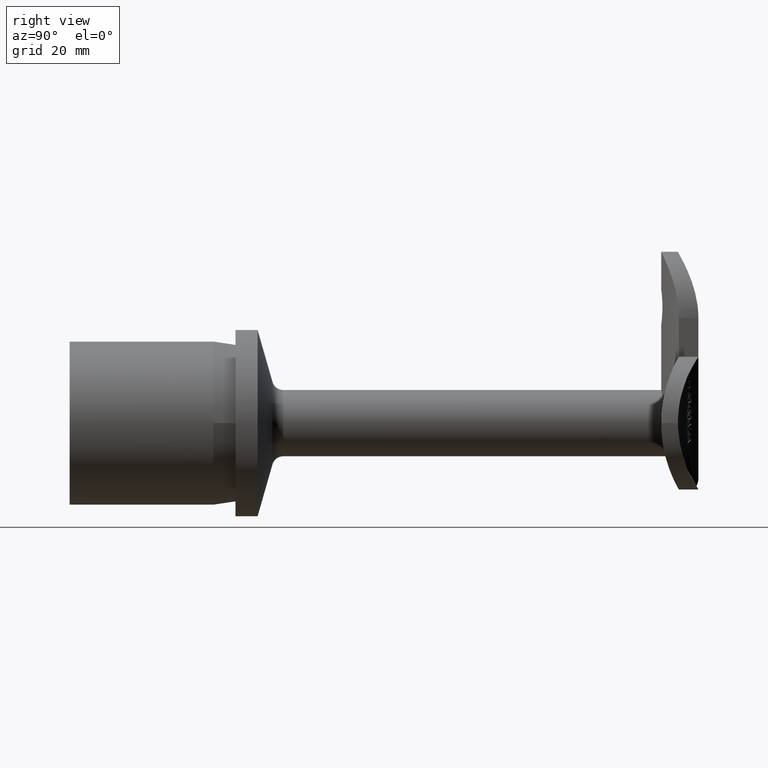
[diagram: clean part render]
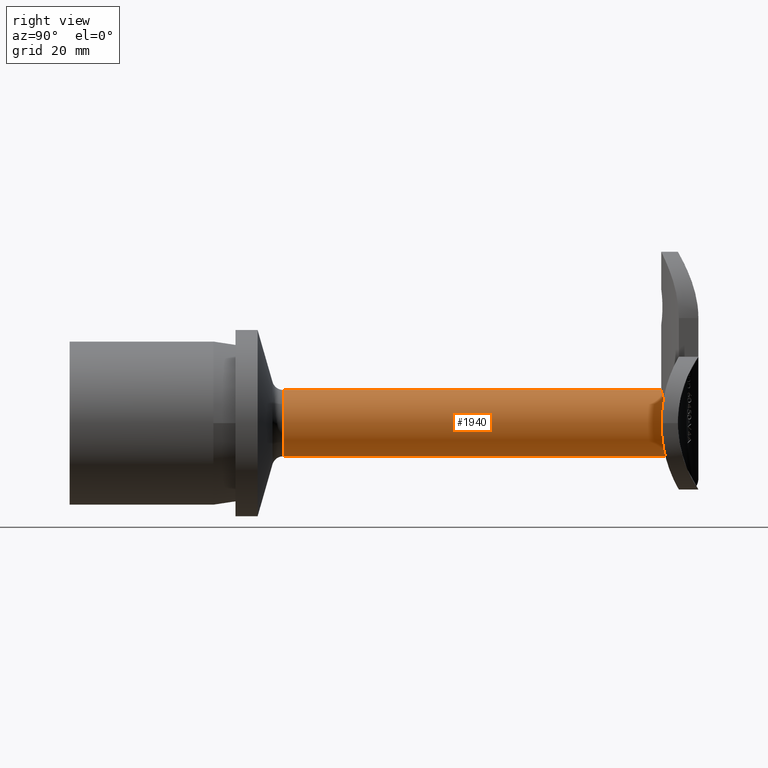
[diagram: same view with one face highlighted and labeled with its STEP entity id]
A machine part, right view. The second image highlights one B-rep face of the part: STEP entity #1940.
In plain terms, the highlighted cylindrical surface (edge-blend (fillet) strip) has radius 6 mm, axis along (-0, -1, -0).
Its self-contained STEP definition (entity closure, byte-faithful):
#39 = CARTESIAN_POINT ( 'NONE',  ( 4.451115378129693500, 107.3376793963071500, 4.034165996108873400 ) ) ;
#113 = LINE ( 'NONE', #8892, #7352 ) ;
#128 = CARTESIAN_POINT ( 'NONE',  ( 2.658914140603365200, 107.1458785027801600, 5.382285171611634700 ) ) ;
#871 = ORIENTED_EDGE ( 'NONE', *, *, #2394, .T. ) ;
#977 = CARTESIAN_POINT ( 'NONE',  ( 6.007303213491995000, 106.9981922714959000, -0.004122072423649082900 ) ) ;
#1066 = CARTESIAN_POINT ( 'NONE',  ( 4.993124476972600000, 107.2303916290421500, 3.339811687309624400 ) ) ;
#1127 = CARTESIAN_POINT ( 'NONE',  ( 0.0000000000000000000, 38.61829553568870200, 0.0000000000000000000 ) ) ;
#1835 = CARTESIAN_POINT ( 'NONE',  ( 4.992489262632666700, 107.2303744650897100, -3.340974275534564200 ) ) ;
#1900 = CARTESIAN_POINT ( 'NONE',  ( 1.939453654615539000, 107.0751086998109800, 5.691372259627117500 ) ) ;
#1909 = CARTESIAN_POINT ( 'NONE',  ( 5.826309649847832600, 107.0425424673026800, 1.463210745224072400 ) ) ;
#1940 = ADVANCED_FACE ( 'NONE', ( #2795 ), #11196, .T. ) ;
#1958 = CARTESIAN_POINT ( 'NONE',  ( 5.549235230649895100, 107.1079951932193200, 2.300577617570883400 ) ) ;
#2028 = CARTESIAN_POINT ( 'NONE',  ( 5.978508411369303700, 107.0053235555119800, 0.5874913322754407000 ) ) ;
#2124 = CARTESIAN_POINT ( 'NONE',  ( 3.006283522152035600, 107.1868193528106200, 5.196256100317628000 ) ) ;
#2137 = DIRECTION ( 'NONE',  ( 0.0000000000000000000, 1.000000000000000000, 0.0000000000000000000 ) ) ;
#2241 = CARTESIAN_POINT ( 'NONE',  ( 7.347880794884119700E-016, 38.61829553568870200, 6.000000000000000000 ) ) ;
#2393 = EDGE_CURVE ( 'NONE', #10021, #9564, #10198, .T. ) ;
#2394 = EDGE_CURVE ( 'NONE', #7284, #10021, #113, .T. ) ;
#2764 = CARTESIAN_POINT ( 'NONE',  ( 3.814113805501499600, 107.4483336495208500, -4.640960195459342700 ) ) ;
#2795 = FACE_OUTER_BOUND ( 'NONE', #9599, .T. ) ;
#2894 = B_SPLINE_CURVE_WITH_KNOTS ( 'NONE', 3,
 ( #8487, #9447, #10410, #11446, #1900, #7841, #128, #2124, #9811, #5982, #8831, #6034 ),
 .UNSPECIFIED., .F., .F.,
 ( 4, 2, 2, 2, 2, 4 ),
 ( 0.01883242191834651900, 0.02000975022933397200, 0.02118707854032142800, 0.02177574269581515300, 0.02236440685130888100, 0.02354173516229633700 ),
 .UNSPECIFIED. ) ;
#3079 = DIRECTION ( 'NONE',  ( -0.0000000000000000000, -1.000000000000000000, -0.0000000000000000000 ) ) ;
#3194 = CARTESIAN_POINT ( 'NONE',  ( 7.347935230672383300E-016, 106.9999999999999100, 6.000000000000000000 ) ) ;
#3197 = ORIENTED_EDGE ( 'NONE', *, *, #4498, .T. ) ;
#3356 = DIRECTION ( 'NONE',  ( -0.0000000000000000000, -1.000000000000000000, -0.0000000000000000000 ) ) ;
#3373 = CARTESIAN_POINT ( 'NONE',  ( 0.0000000000000000000, 38.61829553568870200, -6.000000000000000000 ) ) ;
#3630 = CARTESIAN_POINT ( 'NONE',  ( 0.0000000000000000000, 107.7555976830288100, -6.000000000000000000 ) ) ;
#3785 = CARTESIAN_POINT ( 'NONE',  ( 5.652958321841056000, 107.0839479387723700, -2.032209150859565700 ) ) ;
#3827 = CARTESIAN_POINT ( 'NONE',  ( 5.745903216031942800, 107.0618467881744100, -1.753003249251550400 ) ) ;
#4498 = EDGE_CURVE ( 'NONE', #5566, #8905, #10262, .T. ) ;
#4657 = CARTESIAN_POINT ( 'NONE',  ( 2.306377851548568900, 107.6438978014598100, -5.546773296984530300 ) ) ;
#4706 = CARTESIAN_POINT ( 'NONE',  ( 3.579338666646380200, 107.4851681328012100, -4.824373634984124400 ) ) ;
#5526 = ORIENTED_EDGE ( 'NONE', *, *, #8227, .F. ) ;
#5566 = VERTEX_POINT ( 'NONE', #11354 ) ;
#5619 = CARTESIAN_POINT ( 'NONE',  ( 2.836522165671781600, 107.5860966803389000, -5.295301200678493600 ) ) ;
#5750 = CARTESIAN_POINT ( 'NONE',  ( 5.747798232221140500, 107.0614857855090500, 1.746277326552016200 ) ) ;
#5756 = VECTOR ( 'NONE', #3356, 1000.000000000000000 ) ;
#5982 = CARTESIAN_POINT ( 'NONE',  ( 3.664854894831451700, 107.2768527912361500, 4.766813265480506000 ) ) ;
#6034 = CARTESIAN_POINT ( 'NONE',  ( 4.242640687119283900, 107.3748032536979100, 4.242640687119286500 ) ) ;
#6081 = CARTESIAN_POINT ( 'NONE',  ( 4.242640687119283900, 107.3748032536979100, 4.242640687119286500 ) ) ;
#6576 = CARTESIAN_POINT ( 'NONE',  ( 3.091088715823865100, 107.5539344784792500, -5.150865637093068500 ) ) ;
#6584 = EDGE_CURVE ( 'NONE', #5566, #9564, #6658, .T. ) ;
#6630 = CARTESIAN_POINT ( 'NONE',  ( 5.296200010406567800, 107.1652806590850300, -2.835017389198105000 ) ) ;
#6658 = LINE ( 'NONE', #7948, #5756 ) ;
#6706 = CARTESIAN_POINT ( 'NONE',  ( 5.999792508111686300, 107.0000677431268600, -0.2983862629151092200 ) ) ;
#6890 = ORIENTED_EDGE ( 'NONE', *, *, #2393, .T. ) ;
#7284 = VERTEX_POINT ( 'NONE', #3194 ) ;
#7352 = VECTOR ( 'NONE', #3079, 1000.000000000000000 ) ;
#7541 = DIRECTION ( 'NONE',  ( 0.0000000000000000000, 0.0000000000000000000, -1.000000000000000000 ) ) ;
#7554 = CARTESIAN_POINT ( 'NONE',  ( 0.5970991463582978600, 107.7555976830288200, -6.000000000000000000 ) ) ;
#7747 = AXIS2_PLACEMENT_3D ( 'NONE', #8455, #11293, #7541 ) ;
#7749 = CARTESIAN_POINT ( 'NONE',  ( 4.242640687119283900, 107.3748032536979100, 4.242640687119286500 ) ) ;
#7752 = ORIENTED_EDGE ( 'NONE', *, *, #6584, .F. ) ;
#7798 = CARTESIAN_POINT ( 'NONE',  ( 5.941666977367887600, 107.0144614122797000, 0.8851346512848190500 ) ) ;
#7841 = CARTESIAN_POINT ( 'NONE',  ( 2.481675494813696300, 107.1268977504034900, 5.466222315955952200 ) ) ;
#7948 = CARTESIAN_POINT ( 'NONE',  ( 0.0000000000000000000, 30.00000000000000000, -6.000000000000000000 ) ) ;
#8165 = AXIS2_PLACEMENT_3D ( 'NONE', #1127, #2137, #8844 ) ;
#8227 = EDGE_CURVE ( 'NONE', #7284, #8905, #2894, .T. ) ;
#8455 = CARTESIAN_POINT ( 'NONE',  ( 0.0000000000000000000, 30.00000000000000000, 0.0000000000000000000 ) ) ;
#8487 = CARTESIAN_POINT ( 'NONE',  ( 7.347935230672383300E-016, 106.9999999999999100, 6.000000000000000000 ) ) ;
#8539 = CARTESIAN_POINT ( 'NONE',  ( 5.428108695428072400, 107.1356613795277900, -2.573217404714874600 ) ) ;
#8653 = CARTESIAN_POINT ( 'NONE',  ( 5.149927787681273900, 107.1970133096353100, 3.092716855353306600 ) ) ;
#8831 = CARTESIAN_POINT ( 'NONE',  ( 3.965891283428429200, 107.3255214663222600, 4.519390090810139400 ) ) ;
#8844 = DIRECTION ( 'NONE',  ( 0.0000000000000000000, 0.0000000000000000000, -1.000000000000000000 ) ) ;
#8892 = CARTESIAN_POINT ( 'NONE',  ( 7.347880794884119700E-016, 30.00000000000000000, 6.000000000000000000 ) ) ;
#8905 = VERTEX_POINT ( 'NONE', #6081 ) ;
#9447 = CARTESIAN_POINT ( 'NONE',  ( 0.3925993222649830600, 106.9999999999999100, 6.000000000000000900 ) ) ;
#9544 = CARTESIAN_POINT ( 'NONE',  ( 4.644419546788322300, 107.3005969459247700, 3.809855800767715900 ) ) ;
#9564 = VERTEX_POINT ( 'NONE', #3373 ) ;
#9599 = EDGE_LOOP ( 'NONE', ( #5526, #871, #6890, #7752, #3197 ) ) ;
#9641 = CARTESIAN_POINT ( 'NONE',  ( 5.891079001592692600, 107.0268775597241800, -1.176270528784247200 ) ) ;
#9677 = CARTESIAN_POINT ( 'NONE',  ( 5.427934162553596800, 107.1358340449432900, 2.573749112229428700 ) ) ;
#9811 = CARTESIAN_POINT ( 'NONE',  ( 3.176317510939516100, 107.2087924332102500, 5.094057773203182600 ) ) ;
#10021 = VERTEX_POINT ( 'NONE', #2241 ) ;
#10198 = CIRCLE ( 'NONE', #8165, 6.000000000000000000 ) ;
#10262 = B_SPLINE_CURVE_WITH_KNOTS ( 'NONE', 3,
 ( #3630, #7554, #10306, #11302, #4657, #5619, #6576, #4706, #2764, #10421, #11378, #12342, #1835, #6630, #8539, #3785, #3827, #9641, #10633, #6706, #977, #2028, #7798, #1909, #5750, #1958, #9677, #8653, #1066, #9544, #39, #7749 ),
 .UNSPECIFIED., .F., .F.,
 ( 4, 2, 2, 2, 2, 2, 2, 2, 2, 2, 2, 2, 2, 2, 2, 4 ),
 ( 0.0000000000000000000, 0.001765308661831119600, 0.002647962992746679800, 0.003530617323662240900, 0.004413271654577801500, 0.005295925985493361300, 0.006178580316408922000, 0.007061234647324482600, 0.007943888978240044200, 0.008826543309155606600, 0.009709197640071167200, 0.01059185197098672800, 0.01147450630190229000, 0.01235716063281785100, 0.01323981496373341300, 0.01412246929464897200 ),
 .UNSPECIFIED. ) ;
#10306 = CARTESIAN_POINT ( 'NONE',  ( 1.178678813840273100, 107.7327875766481600, -5.912814791498687900 ) ) ;
#10410 = CARTESIAN_POINT ( 'NONE',  ( 0.7839383179011481000, 107.0095488858738400, 5.961847196981920200 ) ) ;
#10421 = CARTESIAN_POINT ( 'NONE',  ( 4.248460016879041800, 107.3747276444069500, -4.246947508756766100 ) ) ;
#10633 = CARTESIAN_POINT ( 'NONE',  ( 5.941824492706305500, 107.0143743227722300, -0.8838926406329231700 ) ) ;
#11196 = CYLINDRICAL_SURFACE ( 'NONE', #7747, 6.000000000000000000 ) ;
#11293 = DIRECTION ( 'NONE',  ( -0.0000000000000000000, -1.000000000000000000, -0.0000000000000000000 ) ) ;
#11302 = CARTESIAN_POINT ( 'NONE',  ( 2.028523575728398100, 107.6696982235369500, -5.654445837472004600 ) ) ;
#11354 = CARTESIAN_POINT ( 'NONE',  ( 0.0000000000000000000, 107.7555976830288100, -6.000000000000000000 ) ) ;
#11378 = CARTESIAN_POINT ( 'NONE',  ( 4.449804094519580900, 107.3377377334880500, -4.035444616274714800 ) ) ;
#11446 = CARTESIAN_POINT ( 'NONE',  ( 1.564003812828272300, 107.0474354060555300, 5.806209896300123000 ) ) ;
#12342 = CARTESIAN_POINT ( 'NONE',  ( 4.821254219532091800, 107.2656878886073900, -3.583444918129450800 ) ) ;